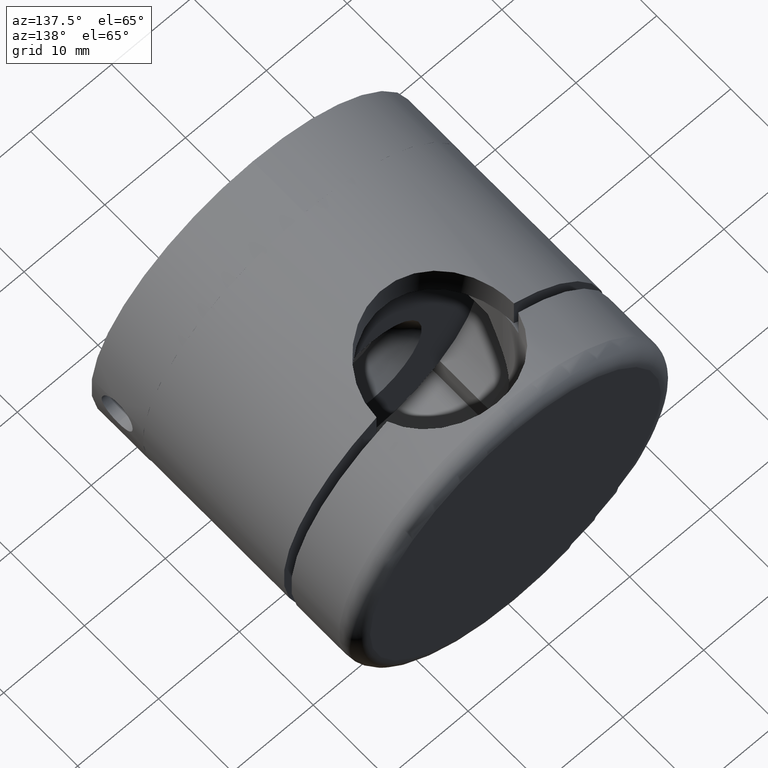
[diagram: clean part render]
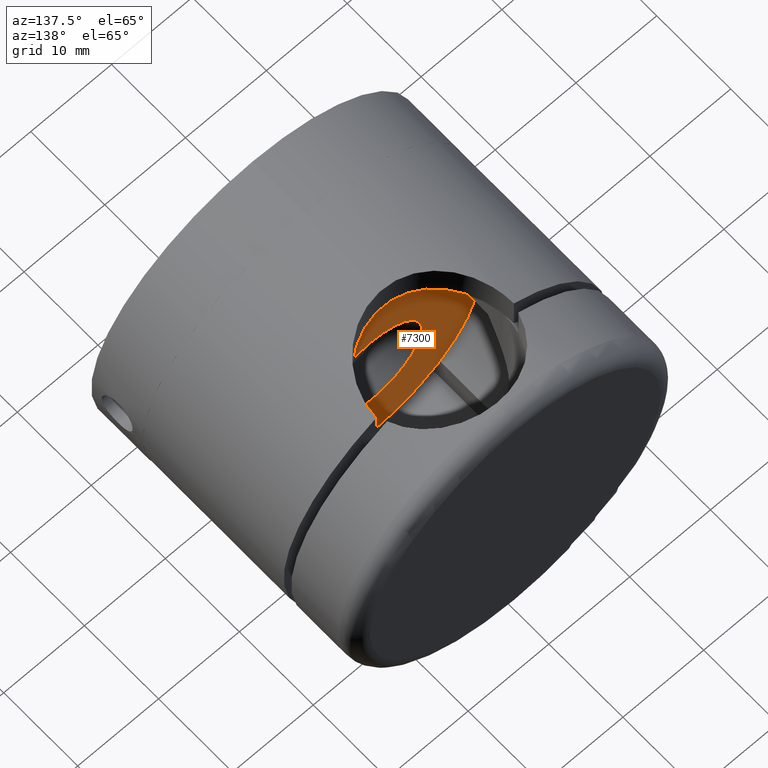
[diagram: same view with one face highlighted and labeled with its STEP entity id]
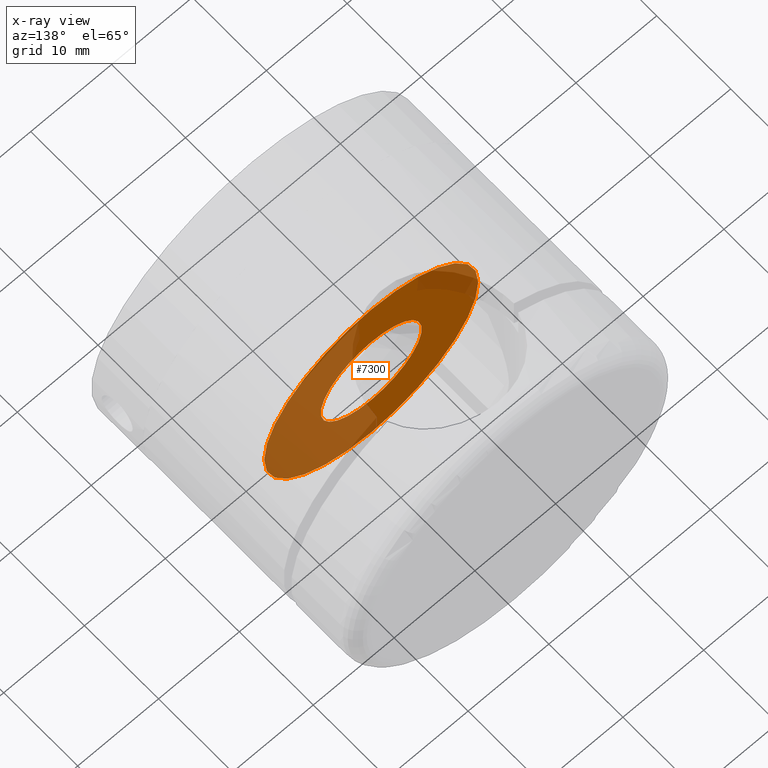
[diagram: x-ray of the same camera — body ghosted, the highlighted face saturated]
A machine part, auxiliary view. The second image highlights one B-rep face of the part: STEP entity #7300.
The next image is the same camera in x-ray: the body ghosted, the highlighted face saturated — about 56% of this face is hidden behind the body in this view.
In plain terms, the highlighted planar face has unit normal (0, 1, 0).
Its self-contained STEP definition (entity closure, byte-faithful):
#1031 = CARTESIAN_POINT ( 'NONE',  ( 0.0000000000000000000, 16.00000000000000000, 0.0000000000000000000 ) ) ;
#1064 = PLANE ( 'NONE',  #3543 ) ;
#1209 = EDGE_LOOP ( 'NONE', ( #11445 ) ) ;
#1953 = FACE_OUTER_BOUND ( 'NONE', #1209, .T. ) ;
#2135 = CARTESIAN_POINT ( 'NONE',  ( 0.0000000000000000000, 16.00000000000000000, 6.250000000000000000 ) ) ;
#2362 = CIRCLE ( 'NONE', #6456, 13.24999999999998400 ) ;
#3230 = DIRECTION ( 'NONE',  ( 0.0000000000000000000, 0.0000000000000000000, 1.000000000000000000 ) ) ;
#3488 = EDGE_CURVE ( 'NONE', #13193, #13193, #5635, .T. ) ;
#3543 = AXIS2_PLACEMENT_3D ( 'NONE', #15772, #17120, #7774 ) ;
#5635 = CIRCLE ( 'NONE', #9370, 6.250000000000000000 ) ;
#6022 = VERTEX_POINT ( 'NONE', #15825 ) ;
#6456 = AXIS2_PLACEMENT_3D ( 'NONE', #1031, #13083, #7786 ) ;
#6578 = FACE_BOUND ( 'NONE', #10578, .T. ) ;
#7300 = ADVANCED_FACE ( 'NONE', ( #6578, #1953 ), #1064, .T. ) ;
#7774 = DIRECTION ( 'NONE',  ( 0.0000000000000000000, -0.0000000000000000000, 1.000000000000000000 ) ) ;
#7786 = DIRECTION ( 'NONE',  ( 0.0000000000000000000, 0.0000000000000000000, 1.000000000000000000 ) ) ;
#8165 = EDGE_CURVE ( 'NONE', #6022, #6022, #2362, .T. ) ;
#9370 = AXIS2_PLACEMENT_3D ( 'NONE', #11373, #15456, #3230 ) ;
#10578 = EDGE_LOOP ( 'NONE', ( #16820 ) ) ;
#11373 = CARTESIAN_POINT ( 'NONE',  ( 0.0000000000000000000, 16.00000000000000000, 0.0000000000000000000 ) ) ;
#11445 = ORIENTED_EDGE ( 'NONE', *, *, #8165, .T. ) ;
#13083 = DIRECTION ( 'NONE',  ( 0.0000000000000000000, 1.000000000000000000, 0.0000000000000000000 ) ) ;
#13193 = VERTEX_POINT ( 'NONE', #2135 ) ;
#15456 = DIRECTION ( 'NONE',  ( -0.0000000000000000000, 1.000000000000000000, -0.0000000000000000000 ) ) ;
#15772 = CARTESIAN_POINT ( 'NONE',  ( 0.0000000000000000000, 16.00000000000000000, 0.0000000000000000000 ) ) ;
#15825 = CARTESIAN_POINT ( 'NONE',  ( 0.0000000000000000000, 16.00000000000000000, 13.24999999999998400 ) ) ;
#16820 = ORIENTED_EDGE ( 'NONE', *, *, #3488, .F. ) ;
#17120 = DIRECTION ( 'NONE',  ( 0.0000000000000000000, 1.000000000000000000, 0.0000000000000000000 ) ) ;